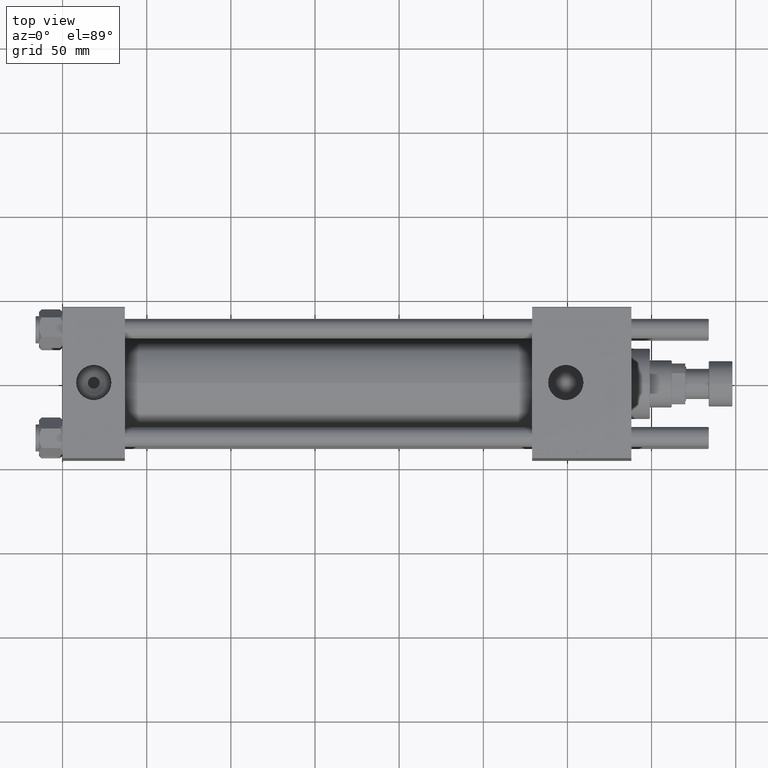
[diagram: clean part render]
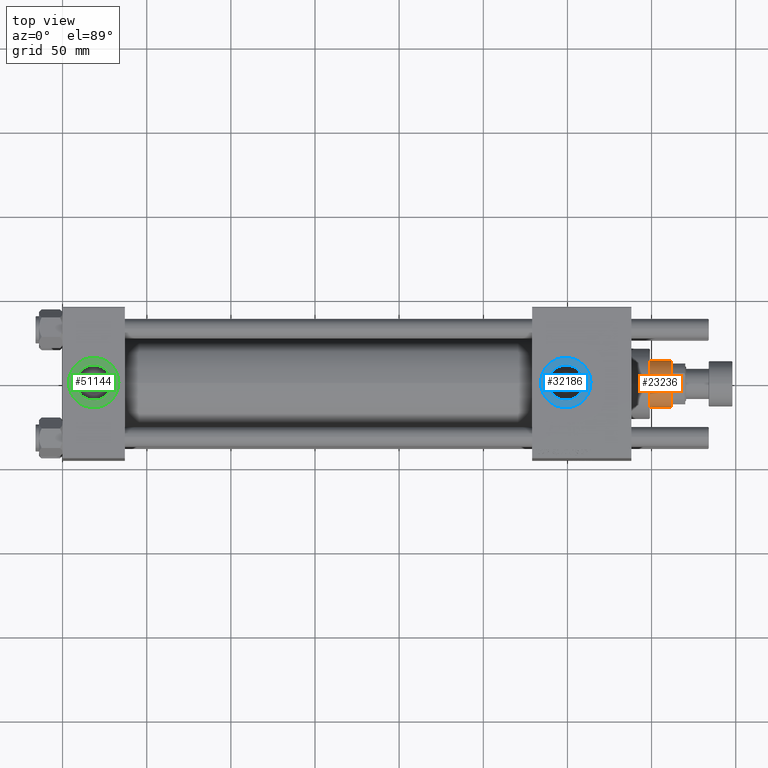
[diagram: same view with three faces highlighted in distinct colors, each labeled with its STEP entity id]
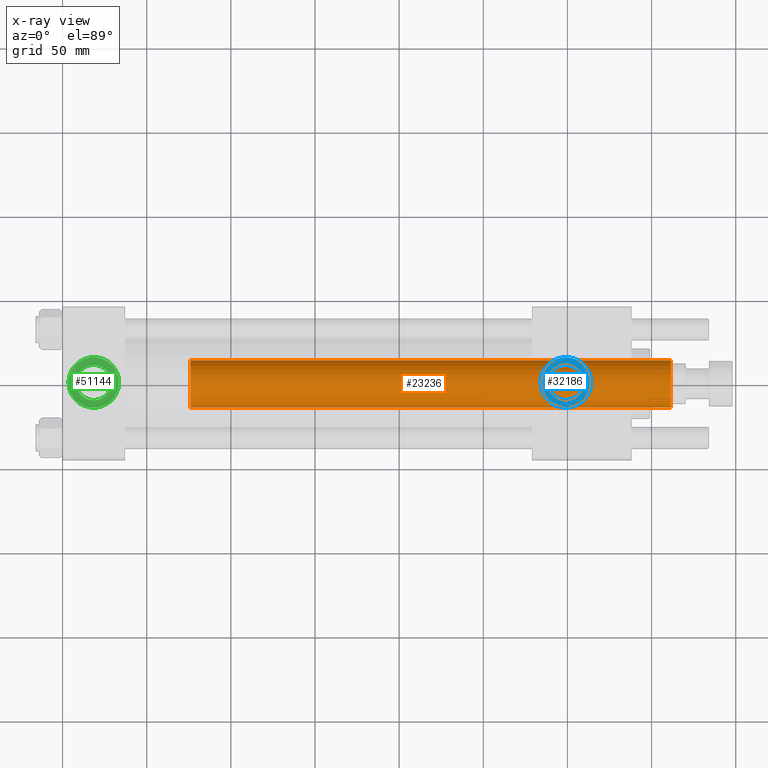
[diagram: x-ray of the same camera — body ghosted, the three highlighted faces saturated]
A machine part, top view with three faces highlighted in distinct colors.
The next image is the same camera in x-ray (body ghosted, the three faces saturated) — at least one of them is partly hidden behind the body in this view.
Their STEP definitions:

[orange] entity #23236 — the highlighted cylindrical surface (edge-blend (fillet) strip) has radius 14 mm, axis along (-1, 0, 0).
#128 = AXIS2_PLACEMENT_3D ( 'NONE', #16517, #43504, #8417 ) ;
#3912 = EDGE_CURVE ( 'NONE', #59314, #44941, #58508, .T. ) ;
#4146 = CARTESIAN_POINT ( 'NONE',  ( 0.000000000000000000, 0.000000000000000000, 39.00000000000000000 ) ) ;
#5460 = VECTOR ( 'NONE', #10456, 1000.000000000000000 ) ;
#8417 = DIRECTION ( 'NONE',  ( 1.000000000000000000, 0.000000000000000000, 0.000000000000000000 ) ) ;
#10456 = DIRECTION ( 'NONE',  ( -0.000000000000000000, -0.000000000000000000, -1.000000000000000000 ) ) ;
#10899 = VECTOR ( 'NONE', #58860, 1000.000000000000000 ) ;
#11687 = FACE_OUTER_BOUND ( 'NONE', #47114, .T. ) ;
#13419 = DIRECTION ( 'NONE',  ( 1.000000000000000000, 0.000000000000000000, 0.000000000000000000 ) ) ;
#14277 = CARTESIAN_POINT ( 'NONE',  ( 14.00000000000000178, 1.714505518806294835E-15, 39.00000000000000000 ) ) ;
#16517 = CARTESIAN_POINT ( 'NONE',  ( 0.000000000000000000, 0.000000000000000000, 324.4999999999999432 ) ) ;
#17319 = EDGE_CURVE ( 'NONE', #59314, #31084, #35767, .T. ) ;
#17895 = DIRECTION ( 'NONE',  ( 0.000000000000000000, 0.000000000000000000, 1.000000000000000000 ) ) ;
#20942 = CARTESIAN_POINT ( 'NONE',  ( 0.000000000000000000, 0.000000000000000000, 324.9999999999999432 ) ) ;
#21518 = DIRECTION ( 'NONE',  ( -1.000000000000000000, 0.000000000000000000, 0.000000000000000000 ) ) ;
#21805 = CIRCLE ( 'NONE', #48604, 14.00000000000000178 ) ;
#23236 = ADVANCED_FACE ( 'NONE', ( #11687 ), #40094, .T. ) ;
#23315 = LINE ( 'NONE', #51499, #5460 ) ;
#25215 = ORIENTED_EDGE ( 'NONE', *, *, #17319, .F. ) ;
#31084 = VERTEX_POINT ( 'NONE', #14277 ) ;
#31866 = CARTESIAN_POINT ( 'NONE',  ( 14.00000000000000178, 1.714505518806294835E-15, 324.4999999999999432 ) ) ;
#32070 = EDGE_CURVE ( 'NONE', #44941, #48794, #23315, .T. ) ;
#32749 = ORIENTED_EDGE ( 'NONE', *, *, #32070, .T. ) ;
#33266 = CARTESIAN_POINT ( 'NONE',  ( -14.00000000000000178, 0.000000000000000000, 39.00000000000000000 ) ) ;
#35767 = LINE ( 'NONE', #41430, #10899 ) ;
#39852 = ORIENTED_EDGE ( 'NONE', *, *, #3912, .T. ) ;
#40094 = CYLINDRICAL_SURFACE ( 'NONE', #44392, 14.00000000000000178 ) ;
#41430 = CARTESIAN_POINT ( 'NONE',  ( 14.00000000000000178, 1.714505518806294835E-15, 324.9999999999999432 ) ) ;
#43504 = DIRECTION ( 'NONE',  ( 0.000000000000000000, 0.000000000000000000, -1.000000000000000000 ) ) ;
#44392 = AXIS2_PLACEMENT_3D ( 'NONE', #20942, #44589, #21518 ) ;
#44589 = DIRECTION ( 'NONE',  ( -0.000000000000000000, -0.000000000000000000, -1.000000000000000000 ) ) ;
#44941 = VERTEX_POINT ( 'NONE', #51504 ) ;
#47114 = EDGE_LOOP ( 'NONE', ( #25215, #39852, #32749, #52455 ) ) ;
#48604 = AXIS2_PLACEMENT_3D ( 'NONE', #4146, #17895, #13419 ) ;
#48794 = VERTEX_POINT ( 'NONE', #33266 ) ;
#51150 = EDGE_CURVE ( 'NONE', #48794, #31084, #21805, .T. ) ;
#51499 = CARTESIAN_POINT ( 'NONE',  ( -14.00000000000000178, 0.000000000000000000, 324.9999999999999432 ) ) ;
#51504 = CARTESIAN_POINT ( 'NONE',  ( -14.00000000000000178, 0.000000000000000000, 324.4999999999999432 ) ) ;
#52455 = ORIENTED_EDGE ( 'NONE', *, *, #51150, .T. ) ;
#58508 = CIRCLE ( 'NONE', #128, 14.00000000000000178 ) ;
#58860 = DIRECTION ( 'NONE',  ( -0.000000000000000000, -0.000000000000000000, -1.000000000000000000 ) ) ;
#59314 = VERTEX_POINT ( 'NONE', #31866 ) ;

[blue] entity #32186 — the highlighted planar face has unit normal (0, 0, 1).
#2295 = AXIS2_PLACEMENT_3D ( 'NONE', #27653, #42568, #47363 ) ;
#5414 = AXIS2_PLACEMENT_3D ( 'NONE', #11352, #20903, #7437 ) ;
#5585 = CARTESIAN_POINT ( 'NONE',  ( 314.0000000000000000, -6.938893903907227589E-15, 44.79999999999999005 ) ) ;
#7222 = CARTESIAN_POINT ( 'NONE',  ( 284.0000000000000000, -5.101923705186193267E-15, 44.79999999999999005 ) ) ;
#7437 = DIRECTION ( 'NONE',  ( 1.000000000000000000, 0.000000000000000000, -0.000000000000000000 ) ) ;
#7762 = VERTEX_POINT ( 'NONE', #38604 ) ;
#8910 = AXIS2_PLACEMENT_3D ( 'NONE', #50265, #59277, #40374 ) ;
#11352 = CARTESIAN_POINT ( 'NONE',  ( 299.0000000000000000, -6.938893903907227589E-15, 44.79999999999999005 ) ) ;
#15597 = CARTESIAN_POINT ( 'NONE',  ( 299.0000000000000000, -6.938893903907227589E-15, 44.79999999999999005 ) ) ;
#15645 = EDGE_CURVE ( 'NONE', #43867, #33048, #45253, .T. ) ;
#16597 = ORIENTED_EDGE ( 'NONE', *, *, #48029, .T. ) ;
#18351 = EDGE_CURVE ( 'NONE', #7762, #23857, #28091, .T. ) ;
#20903 = DIRECTION ( 'NONE',  ( 0.000000000000000000, 0.000000000000000000, 1.000000000000000000 ) ) ;
#23857 = VERTEX_POINT ( 'NONE', #41436 ) ;
#25404 = FACE_OUTER_BOUND ( 'NONE', #28755, .T. ) ;
#27653 = CARTESIAN_POINT ( 'NONE',  ( 299.0000000000000000, -6.938893903907227589E-15, 44.79999999999999005 ) ) ;
#28091 = CIRCLE ( 'NONE', #2295, 10.47999999999998977 ) ;
#28755 = EDGE_LOOP ( 'NONE', ( #16597, #48917 ) ) ;
#29281 = CARTESIAN_POINT ( 'NONE',  ( 299.0000000000000000, -6.938893903907227589E-15, 44.79999999999999005 ) ) ;
#31304 = AXIS2_PLACEMENT_3D ( 'NONE', #15597, #47652, #56363 ) ;
#32186 = ADVANCED_FACE ( 'NONE', ( #47886, #25404 ), #43686, .T. ) ;
#33048 = VERTEX_POINT ( 'NONE', #5585 ) ;
#34316 = CIRCLE ( 'NONE', #44815, 10.47999999999998977 ) ;
#38604 = CARTESIAN_POINT ( 'NONE',  ( 288.5199999999999818, -6.938893903907227589E-15, 44.79999999999999005 ) ) ;
#40374 = DIRECTION ( 'NONE',  ( 1.000000000000000000, 0.000000000000000000, 0.000000000000000000 ) ) ;
#41436 = CARTESIAN_POINT ( 'NONE',  ( 309.4799999999999613, -5.655464058400803678E-15, 44.79999999999999005 ) ) ;
#42568 = DIRECTION ( 'NONE',  ( -0.000000000000000000, -0.000000000000000000, -1.000000000000000000 ) ) ;
#43369 = DIRECTION ( 'NONE',  ( -0.000000000000000000, -0.000000000000000000, -1.000000000000000000 ) ) ;
#43686 = PLANE ( 'NONE',  #5414 ) ;
#43867 = VERTEX_POINT ( 'NONE', #7222 ) ;
#44815 = AXIS2_PLACEMENT_3D ( 'NONE', #29281, #43369, #47562 ) ;
#44878 = ORIENTED_EDGE ( 'NONE', *, *, #51984, .T. ) ;
#45253 = CIRCLE ( 'NONE', #8910, 15.00000000000001421 ) ;
#45923 = EDGE_LOOP ( 'NONE', ( #57797, #44878 ) ) ;
#47363 = DIRECTION ( 'NONE',  ( 1.000000000000000000, 0.000000000000000000, 0.000000000000000000 ) ) ;
#47562 = DIRECTION ( 'NONE',  ( 1.000000000000000000, 0.000000000000000000, 0.000000000000000000 ) ) ;
#47652 = DIRECTION ( 'NONE',  ( 0.000000000000000000, 0.000000000000000000, 1.000000000000000000 ) ) ;
#47886 = FACE_BOUND ( 'NONE', #45923, .T. ) ;
#48029 = EDGE_CURVE ( 'NONE', #33048, #43867, #55226, .T. ) ;
#48917 = ORIENTED_EDGE ( 'NONE', *, *, #15645, .T. ) ;
#50265 = CARTESIAN_POINT ( 'NONE',  ( 299.0000000000000000, -6.938893903907227589E-15, 44.79999999999999005 ) ) ;
#51984 = EDGE_CURVE ( 'NONE', #23857, #7762, #34316, .T. ) ;
#55226 = CIRCLE ( 'NONE', #31304, 15.00000000000001421 ) ;
#56363 = DIRECTION ( 'NONE',  ( 1.000000000000000000, 0.000000000000000000, 0.000000000000000000 ) ) ;
#57797 = ORIENTED_EDGE ( 'NONE', *, *, #18351, .T. ) ;
#59277 = DIRECTION ( 'NONE',  ( 0.000000000000000000, 0.000000000000000000, 1.000000000000000000 ) ) ;

[green] entity #51144 — the highlighted planar face has unit normal (0, 0, 1).
#1448 = CARTESIAN_POINT ( 'NONE',  ( 33.50000000000000000, -8.673617379884038628E-15, 44.80000000000000426 ) ) ;
#2314 = DIRECTION ( 'NONE',  ( 0.000000000000000000, 0.000000000000000000, 1.000000000000000000 ) ) ;
#8424 = CARTESIAN_POINT ( 'NONE',  ( 8.019999999999999574, -7.390187534377611561E-15, 44.80000000000000426 ) ) ;
#8648 = FACE_OUTER_BOUND ( 'NONE', #16322, .T. ) ;
#10262 = DIRECTION ( 'NONE',  ( 0.000000000000000000, 0.000000000000000000, 1.000000000000000000 ) ) ;
#10570 = DIRECTION ( 'NONE',  ( 1.000000000000000000, 0.000000000000000000, 0.000000000000000000 ) ) ;
#14313 = ORIENTED_EDGE ( 'NONE', *, *, #29366, .T. ) ;
#16322 = EDGE_LOOP ( 'NONE', ( #36780, #14313 ) ) ;
#17563 = DIRECTION ( 'NONE',  ( 0.000000000000000000, 0.000000000000000000, 1.000000000000000000 ) ) ;
#17799 = VERTEX_POINT ( 'NONE', #1448 ) ;
#20302 = CARTESIAN_POINT ( 'NONE',  ( 18.50000000000000000, -8.673617379884038628E-15, 44.80000000000000426 ) ) ;
#20565 = DIRECTION ( 'NONE',  ( 1.000000000000000000, 0.000000000000000000, 0.000000000000000000 ) ) ;
#21415 = CIRCLE ( 'NONE', #36724, 10.48000000000000043 ) ;
#22609 = ORIENTED_EDGE ( 'NONE', *, *, #22994, .F. ) ;
#22994 = EDGE_CURVE ( 'NONE', #38847, #37877, #21415, .T. ) ;
#24757 = AXIS2_PLACEMENT_3D ( 'NONE', #20302, #38591, #56892 ) ;
#24854 = CARTESIAN_POINT ( 'NONE',  ( 3.499999999999997780, -6.836647181163008250E-15, 44.80000000000000426 ) ) ;
#26850 = CARTESIAN_POINT ( 'NONE',  ( 18.50000000000000000, -8.673617379884038628E-15, 44.80000000000000426 ) ) ;
#26894 = DIRECTION ( 'NONE',  ( 0.000000000000000000, 0.000000000000000000, 1.000000000000000000 ) ) ;
#29366 = EDGE_CURVE ( 'NONE', #38987, #17799, #39808, .T. ) ;
#31982 = CARTESIAN_POINT ( 'NONE',  ( 18.50000000000000000, -8.673617379884038628E-15, 44.80000000000000426 ) ) ;
#32271 = PLANE ( 'NONE',  #34284 ) ;
#34284 = AXIS2_PLACEMENT_3D ( 'NONE', #31982, #26894, #45176 ) ;
#34383 = CIRCLE ( 'NONE', #53515, 15.00000000000000355 ) ;
#35854 = DIRECTION ( 'NONE',  ( 1.000000000000000000, 0.000000000000000000, 0.000000000000000000 ) ) ;
#36226 = EDGE_CURVE ( 'NONE', #37877, #38847, #56347, .T. ) ;
#36724 = AXIS2_PLACEMENT_3D ( 'NONE', #42608, #10262, #10570 ) ;
#36780 = ORIENTED_EDGE ( 'NONE', *, *, #38138, .T. ) ;
#37877 = VERTEX_POINT ( 'NONE', #57592 ) ;
#38138 = EDGE_CURVE ( 'NONE', #17799, #38987, #34383, .T. ) ;
#38591 = DIRECTION ( 'NONE',  ( 0.000000000000000000, 0.000000000000000000, 1.000000000000000000 ) ) ;
#38847 = VERTEX_POINT ( 'NONE', #8424 ) ;
#38987 = VERTEX_POINT ( 'NONE', #24854 ) ;
#39238 = EDGE_LOOP ( 'NONE', ( #45903, #22609 ) ) ;
#39808 = CIRCLE ( 'NONE', #58954, 15.00000000000000355 ) ;
#42608 = CARTESIAN_POINT ( 'NONE',  ( 18.50000000000000000, -8.673617379884038628E-15, 44.80000000000000426 ) ) ;
#43351 = CARTESIAN_POINT ( 'NONE',  ( 18.50000000000000000, -8.673617379884038628E-15, 44.80000000000000426 ) ) ;
#45176 = DIRECTION ( 'NONE',  ( 1.000000000000000000, 0.000000000000000000, -0.000000000000000000 ) ) ;
#45903 = ORIENTED_EDGE ( 'NONE', *, *, #36226, .F. ) ;
#51144 = ADVANCED_FACE ( 'NONE', ( #54780, #8648 ), #32271, .T. ) ;
#53515 = AXIS2_PLACEMENT_3D ( 'NONE', #43351, #2314, #20565 ) ;
#54780 = FACE_BOUND ( 'NONE', #39238, .T. ) ;
#56347 = CIRCLE ( 'NONE', #24757, 10.48000000000000043 ) ;
#56892 = DIRECTION ( 'NONE',  ( 1.000000000000000000, 0.000000000000000000, 0.000000000000000000 ) ) ;
#57592 = CARTESIAN_POINT ( 'NONE',  ( 28.98000000000000043, -8.673617379884038628E-15, 44.80000000000000426 ) ) ;
#58954 = AXIS2_PLACEMENT_3D ( 'NONE', #26850, #17563, #35854 ) ;